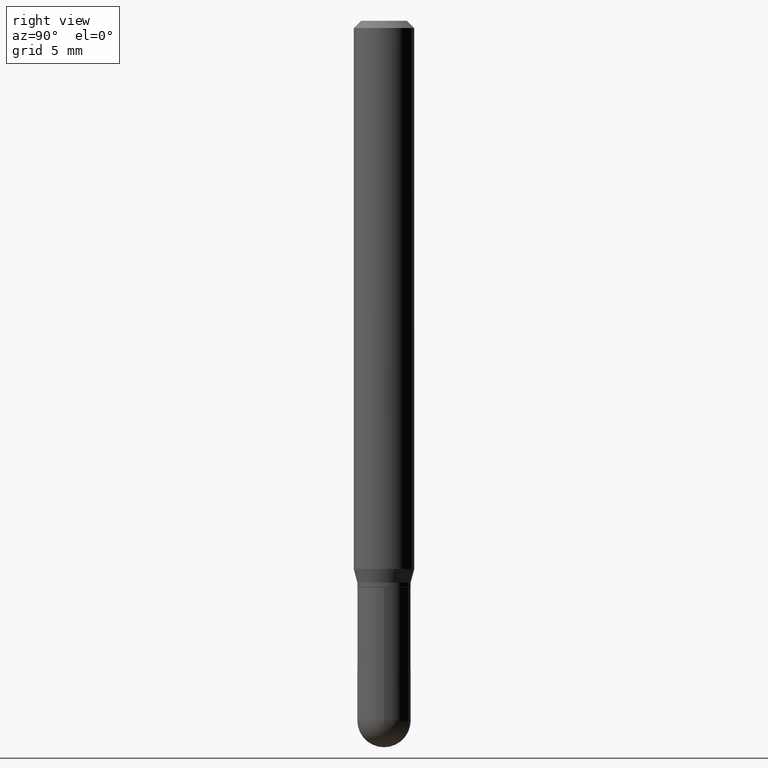
[diagram: clean part render]
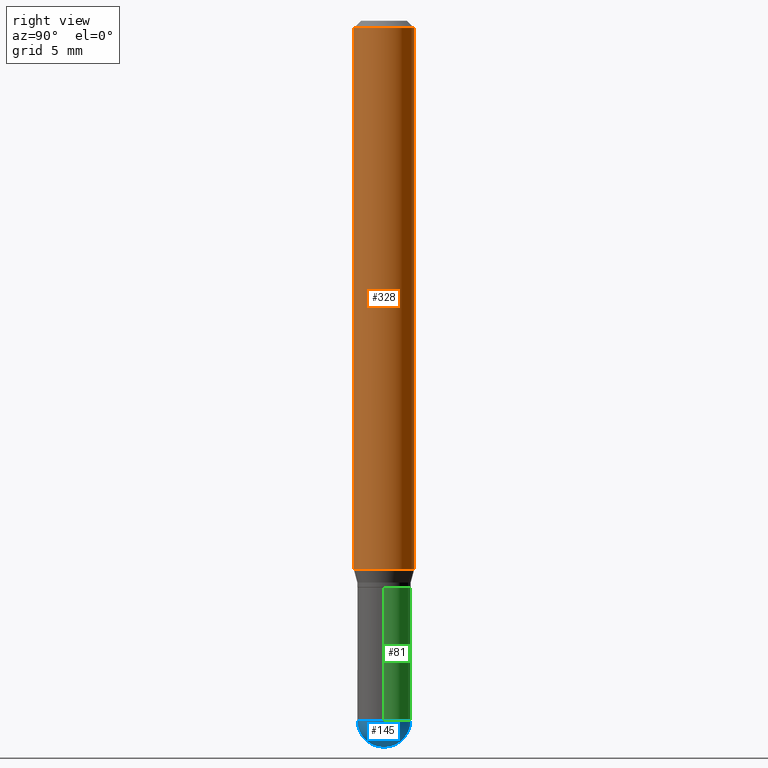
[diagram: same view with three faces highlighted in distinct colors, each labeled with its STEP entity id]
A machine part, right view with three faces highlighted in distinct colors.
Their STEP definitions:

[orange] entity #328 — the highlighted cylindrical surface (edge-blend (fillet) strip) has radius 1.5875 mm, axis along (-0, 0, 1).
#13 = DIRECTION ( 'NONE',  ( -2.445161355493817803E-29, 3.491921625732120757E-15, 1.000000000000000000 ) ) ;
#34 = ORIENTED_EDGE ( 'NONE', *, *, #300, .T. ) ;
#54 = CARTESIAN_POINT ( 'NONE',  ( 3.667742033240729280E-31, -5.237882438598184587E-17, -0.01500000000000000812 ) ) ;
#62 = CARTESIAN_POINT ( 'NONE',  ( -4.364351673553916201E-16, -0.06250000000000000000, 2.182451016082575473E-16 ) ) ;
#65 = CIRCLE ( 'NONE', #349, 0.06250000000000000000 ) ;
#68 = EDGE_CURVE ( 'NONE', #430, #317, #65, .T. ) ;
#76 = ORIENTED_EDGE ( 'NONE', *, *, #346, .F. ) ;
#77 = VERTEX_POINT ( 'NONE', #281 ) ;
#91 = CARTESIAN_POINT ( 'NONE',  ( 4.440892098500625669E-16, 0.06250000000000000000, -2.182451016082575473E-16 ) ) ;
#105 = AXIS2_PLACEMENT_3D ( 'NONE', #54, #364, #246 ) ;
#120 = CIRCLE ( 'NONE', #105, 0.06250000000000000000 ) ;
#126 = EDGE_CURVE ( 'NONE', #470, #77, #120, .T. ) ;
#140 = CARTESIAN_POINT ( 'NONE',  ( 0.000000000000000000, 0.000000000000000000, 0.000000000000000000 ) ) ;
#164 = DIRECTION ( 'NONE',  ( -6.982962677686265922E-15, -1.000000000000000000, 4.370956789862821150E-15 ) ) ;
#187 = VECTOR ( 'NONE', #243, 39.37007874015748143 ) ;
#202 = CARTESIAN_POINT ( 'NONE',  ( 2.767946174287279245E-29, -3.952888868924657583E-15, -1.132009618943234486 ) ) ;
#205 = CARTESIAN_POINT ( 'NONE',  ( 4.440892098500901277E-16, 0.06249999999999603789, -1.132009618943234708 ) ) ;
#209 = CYLINDRICAL_SURFACE ( 'NONE', #351, 0.06250000000000000000 ) ;
#243 = DIRECTION ( 'NONE',  ( -2.445161355493817803E-29, 3.491921625732120363E-15, 1.000000000000000000 ) ) ;
#246 = DIRECTION ( 'NONE',  ( -6.982962677686265922E-15, -1.000000000000000000, 3.483106191921935554E-15 ) ) ;
#252 = DIRECTION ( 'NONE',  ( -6.982962677686265922E-15, -1.000000000000000000, 3.491921625732120757E-15 ) ) ;
#255 = CARTESIAN_POINT ( 'NONE',  ( -4.364351673553912750E-16, -0.06250000000000005551, -0.01499999999999979128 ) ) ;
#270 = EDGE_LOOP ( 'NONE', ( #439, #34, #391, #76 ) ) ;
#281 = CARTESIAN_POINT ( 'NONE',  ( 4.440892098500904235E-16, 0.06249999999999995143, -0.01500000000000022669 ) ) ;
#300 = EDGE_CURVE ( 'NONE', #317, #77, #321, .T. ) ;
#304 = VECTOR ( 'NONE', #417, 39.37007874015748143 ) ;
#317 = VERTEX_POINT ( 'NONE', #205 ) ;
#321 = LINE ( 'NONE', #91, #187 ) ;
#328 = ADVANCED_FACE ( 'NONE', ( #415 ), #209, .T. ) ;
#346 = EDGE_CURVE ( 'NONE', #430, #470, #376, .T. ) ;
#349 = AXIS2_PLACEMENT_3D ( 'NONE', #202, #13, #164 ) ;
#351 = AXIS2_PLACEMENT_3D ( 'NONE', #140, #420, #252 ) ;
#364 = DIRECTION ( 'NONE',  ( -2.445161355493817803E-29, 3.491921625732120757E-15, 1.000000000000000000 ) ) ;
#376 = LINE ( 'NONE', #62, #304 ) ;
#391 = ORIENTED_EDGE ( 'NONE', *, *, #126, .F. ) ;
#415 = FACE_OUTER_BOUND ( 'NONE', #270, .T. ) ;
#417 = DIRECTION ( 'NONE',  ( -2.445161355493817803E-29, 3.491921625732120363E-15, 1.000000000000000000 ) ) ;
#420 = DIRECTION ( 'NONE',  ( -2.445161355493817803E-29, 3.491921625732120757E-15, 1.000000000000000000 ) ) ;
#430 = VERTEX_POINT ( 'NONE', #462 ) ;
#439 = ORIENTED_EDGE ( 'NONE', *, *, #68, .T. ) ;
#462 = CARTESIAN_POINT ( 'NONE',  ( -4.364351673553640100E-16, -0.06250000000000395517, -1.132009618943234264 ) ) ;
#470 = VERTEX_POINT ( 'NONE', #255 ) ;

[blue] entity #145 — the highlighted spherical surface has radius 1.397 mm.
#7 = ORIENTED_EDGE ( 'NONE', *, *, #185, .F. ) ;
#10 = CARTESIAN_POINT ( 'NONE',  ( 3.528999010347036160E-29, -5.051926092023656149E-15, -1.445000000000000062 ) ) ;
#16 = CARTESIAN_POINT ( 'NONE',  ( 3.840629472727801875E-16, 0.05499999999999499040, -1.445000000000000284 ) ) ;
#25 = AXIS2_PLACEMENT_3D ( 'NONE', #419, #249, #104 ) ;
#30 = AXIS2_PLACEMENT_3D ( 'NONE', #96, #203, #369 ) ;
#38 = AXIS2_PLACEMENT_3D ( 'NONE', #10, #240, #408 ) ;
#52 = EDGE_CURVE ( 'NONE', #207, #74, #88, .T. ) ;
#55 = CARTESIAN_POINT ( 'NONE',  ( 0.05500000000000001416, -4.949174797810157466E-15, -1.445000000000000062 ) ) ;
#66 = AXIS2_PLACEMENT_3D ( 'NONE', #288, #388, #135 ) ;
#74 = VERTEX_POINT ( 'NONE', #16 ) ;
#88 = CIRCLE ( 'NONE', #38, 0.05500000000000006273 ) ;
#96 = CARTESIAN_POINT ( 'NONE',  ( 3.528999010347036160E-29, -5.051926092023656149E-15, -1.445000000000000062 ) ) ;
#104 = DIRECTION ( 'NONE',  ( -7.105427357601001070E-15, -1.000000000000000000, 0.000000000000000000 ) ) ;
#125 = SPHERICAL_SURFACE ( 'NONE', #30, 0.05500000000000006273 ) ;
#135 = DIRECTION ( 'NONE',  ( 1.000000000000000000, -6.982962677686260400E-15, 0.000000000000000000 ) ) ;
#145 = ADVANCED_FACE ( 'NONE', ( #460 ), #125, .T. ) ;
#169 = CIRCLE ( 'NONE', #189, 0.05500000000000001416 ) ;
#185 = EDGE_CURVE ( 'NONE', #296, #74, #169, .T. ) ;
#189 = AXIS2_PLACEMENT_3D ( 'NONE', #233, #445, #454 ) ;
#203 = DIRECTION ( 'NONE',  ( -1.000000000000000000, 6.982962677686266711E-15, -4.883557194083112901E-29 ) ) ;
#207 = VERTEX_POINT ( 'NONE', #239 ) ;
#219 = CIRCLE ( 'NONE', #66, 0.05500000000000001416 ) ;
#222 = ORIENTED_EDGE ( 'NONE', *, *, #52, .T. ) ;
#233 = CARTESIAN_POINT ( 'NONE',  ( 3.533702424937522517E-29, -5.045190534628345684E-15, -1.445000000000000062 ) ) ;
#239 = CARTESIAN_POINT ( 'NONE',  ( 3.665851501982462558E-29, -5.240589786962374592E-15, -1.500000000000000222 ) ) ;
#240 = DIRECTION ( 'NONE',  ( 1.000000000000000000, -6.982962677686265922E-15, 4.883557194083112340E-29 ) ) ;
#241 = CIRCLE ( 'NONE', #25, 0.05500000000000006273 ) ;
#249 = DIRECTION ( 'NONE',  ( -1.000000000000000000, 7.105427357601001070E-15, -4.926315508542082329E-29 ) ) ;
#264 = EDGE_LOOP ( 'NONE', ( #320, #222, #7, #374 ) ) ;
#288 = CARTESIAN_POINT ( 'NONE',  ( 3.533702424937522517E-29, -5.045190534628345684E-15, -1.445000000000000062 ) ) ;
#296 = VERTEX_POINT ( 'NONE', #55 ) ;
#320 = ORIENTED_EDGE ( 'NONE', *, *, #399, .F. ) ;
#354 = VERTEX_POINT ( 'NONE', #501 ) ;
#369 = DIRECTION ( 'NONE',  ( 6.982962677686266711E-15, 1.000000000000000000, -4.966996352116836765E-15 ) ) ;
#374 = ORIENTED_EDGE ( 'NONE', *, *, #386, .F. ) ;
#386 = EDGE_CURVE ( 'NONE', #354, #296, #219, .T. ) ;
#388 = DIRECTION ( 'NONE',  ( -2.445468806185136597E-29, 3.491481338843145583E-15, 1.000000000000000000 ) ) ;
#399 = EDGE_CURVE ( 'NONE', #207, #354, #241, .T. ) ;
#408 = DIRECTION ( 'NONE',  ( 6.982962677686265922E-15, 1.000000000000000000, 0.000000000000000000 ) ) ;
#419 = CARTESIAN_POINT ( 'NONE',  ( 3.528999010347036160E-29, -5.051926092023656149E-15, -1.445000000000000062 ) ) ;
#445 = DIRECTION ( 'NONE',  ( -2.445468806185136597E-29, 3.491481338843145583E-15, 1.000000000000000000 ) ) ;
#454 = DIRECTION ( 'NONE',  ( 1.000000000000000000, -6.982962677686260400E-15, 0.000000000000000000 ) ) ;
#460 = FACE_OUTER_BOUND ( 'NONE', #264, .T. ) ;
#501 = CARTESIAN_POINT ( 'NONE',  ( -3.907985046680199999E-16, -0.05500000000000507955, -1.444999999999999840 ) ) ;

[green] entity #81 — the highlighted cylindrical surface (edge-blend (fillet) strip) has radius 1.397 mm, axis along (-0, 0, 1).
#11 = CARTESIAN_POINT ( 'NONE',  ( 2.861198503236610065E-29, -4.085033166446480067E-15, -1.170000000000000151 ) ) ;
#16 = CARTESIAN_POINT ( 'NONE',  ( 3.840629472727801875E-16, 0.05499999999999499040, -1.445000000000000284 ) ) ;
#19 = AXIS2_PLACEMENT_3D ( 'NONE', #11, #382, #216 ) ;
#32 = ORIENTED_EDGE ( 'NONE', *, *, #119, .T. ) ;
#41 = DIRECTION ( 'NONE',  ( -2.445468806185136877E-29, 3.491481338843145188E-15, 1.000000000000000000 ) ) ;
#47 = CARTESIAN_POINT ( 'NONE',  ( 0.05500000000000000028, -4.469096113719225052E-15, -1.170000000000000151 ) ) ;
#49 = DIRECTION ( 'NONE',  ( -2.445468806185136597E-29, 3.491481338843145583E-15, 1.000000000000000000 ) ) ;
#53 = VERTEX_POINT ( 'NONE', #47 ) ;
#55 = CARTESIAN_POINT ( 'NONE',  ( 0.05500000000000001416, -4.949174797810157466E-15, -1.445000000000000062 ) ) ;
#71 = ORIENTED_EDGE ( 'NONE', *, *, #215, .T. ) ;
#74 = VERTEX_POINT ( 'NONE', #16 ) ;
#78 = VERTEX_POINT ( 'NONE', #442 ) ;
#81 = ADVANCED_FACE ( 'NONE', ( #326 ), #131, .T. ) ;
#89 = VECTOR ( 'NONE', #327, 39.37007874015748143 ) ;
#94 = CARTESIAN_POINT ( 'NONE',  ( 3.533702424937522517E-29, -5.045190534628345684E-15, -1.445000000000000062 ) ) ;
#119 = EDGE_CURVE ( 'NONE', #74, #379, #425, .T. ) ;
#131 = CYLINDRICAL_SURFACE ( 'NONE', #218, 0.05500000000000001416 ) ;
#139 = EDGE_CURVE ( 'NONE', #53, #78, #396, .T. ) ;
#147 = ORIENTED_EDGE ( 'NONE', *, *, #185, .T. ) ;
#167 = EDGE_LOOP ( 'NONE', ( #32, #71, #345, #195, #147 ) ) ;
#169 = CIRCLE ( 'NONE', #189, 0.05500000000000001416 ) ;
#185 = EDGE_CURVE ( 'NONE', #296, #74, #169, .T. ) ;
#189 = AXIS2_PLACEMENT_3D ( 'NONE', #233, #445, #454 ) ;
#195 = ORIENTED_EDGE ( 'NONE', *, *, #323, .F. ) ;
#204 = DIRECTION ( 'NONE',  ( -2.445468806185136597E-29, 3.491481338843145583E-15, 1.000000000000000000 ) ) ;
#215 = EDGE_CURVE ( 'NONE', #379, #78, #277, .T. ) ;
#216 = DIRECTION ( 'NONE',  ( 1.000000000000000000, -6.982962677686262766E-15, 0.000000000000000000 ) ) ;
#218 = AXIS2_PLACEMENT_3D ( 'NONE', #411, #49, #455 ) ;
#233 = CARTESIAN_POINT ( 'NONE',  ( 3.533702424937522517E-29, -5.045190534628345684E-15, -1.445000000000000062 ) ) ;
#247 = LINE ( 'NONE', #372, #89 ) ;
#277 = LINE ( 'NONE', #361, #418 ) ;
#296 = VERTEX_POINT ( 'NONE', #55 ) ;
#323 = EDGE_CURVE ( 'NONE', #296, #53, #247, .T. ) ;
#326 = FACE_OUTER_BOUND ( 'NONE', #167, .T. ) ;
#327 = DIRECTION ( 'NONE',  ( -2.445468806185136877E-29, 3.491481338843145188E-15, 1.000000000000000000 ) ) ;
#345 = ORIENTED_EDGE ( 'NONE', *, *, #139, .F. ) ;
#361 = CARTESIAN_POINT ( 'NONE',  ( -0.05500000000000001416, 3.907985046680552028E-16, -2.705414299640198712E-30 ) ) ;
#371 = DIRECTION ( 'NONE',  ( 1.000000000000000000, -6.982962677686260400E-15, 0.000000000000000000 ) ) ;
#372 = CARTESIAN_POINT ( 'NONE',  ( 0.05500000000000001416, -3.840629472727447381E-16, 2.681897226687765177E-30 ) ) ;
#379 = VERTEX_POINT ( 'NONE', #497 ) ;
#382 = DIRECTION ( 'NONE',  ( -2.445468806185136597E-29, 3.491481338843145583E-15, 1.000000000000000000 ) ) ;
#396 = CIRCLE ( 'NONE', #19, 0.05500000000000000028 ) ;
#411 = CARTESIAN_POINT ( 'NONE',  ( 0.000000000000000000, 0.000000000000000000, 0.000000000000000000 ) ) ;
#418 = VECTOR ( 'NONE', #41, 39.37007874015748143 ) ;
#425 = CIRCLE ( 'NONE', #436, 0.05500000000000001416 ) ;
#436 = AXIS2_PLACEMENT_3D ( 'NONE', #94, #204, #371 ) ;
#442 = CARTESIAN_POINT ( 'NONE',  ( -0.05500000000000000028, -4.174313345869358610E-15, -1.170000000000000151 ) ) ;
#445 = DIRECTION ( 'NONE',  ( -2.445468806185136597E-29, 3.491481338843145583E-15, 1.000000000000000000 ) ) ;
#454 = DIRECTION ( 'NONE',  ( 1.000000000000000000, -6.982962677686260400E-15, 0.000000000000000000 ) ) ;
#455 = DIRECTION ( 'NONE',  ( 1.000000000000000000, -6.982962677686265922E-15, 4.876176775795935232E-29 ) ) ;
#497 = CARTESIAN_POINT ( 'NONE',  ( -0.05500000000000001416, -4.174313345869358610E-15, -1.445000000000000062 ) ) ;